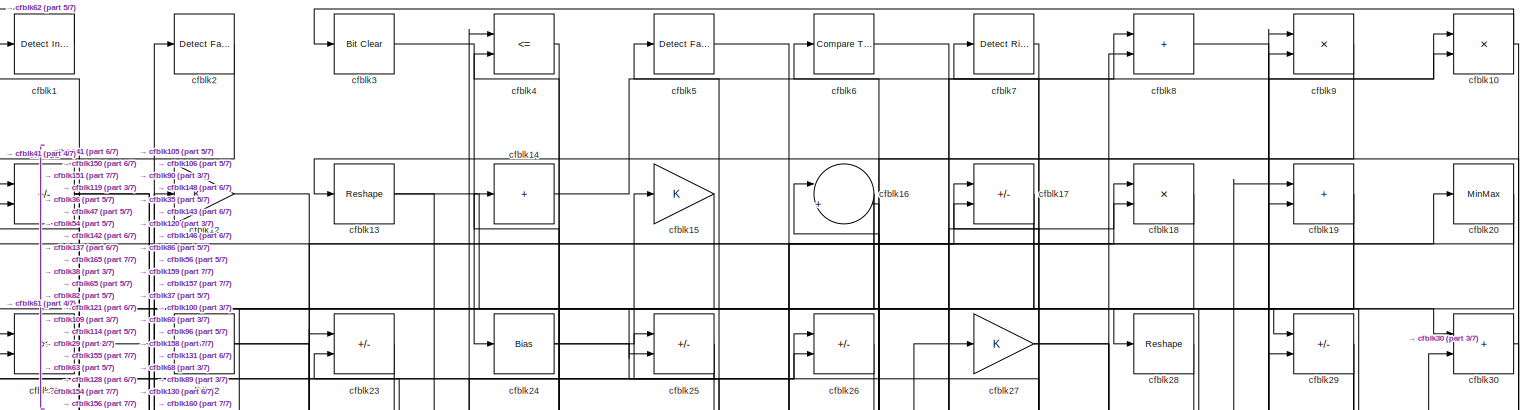
[diagram: root canvas - part 1/7, full width, top band]
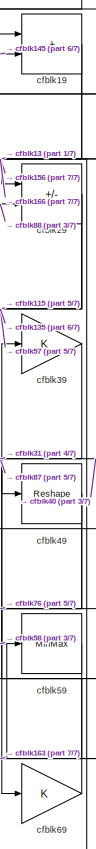
[diagram: root canvas - part 2/7, top right region]
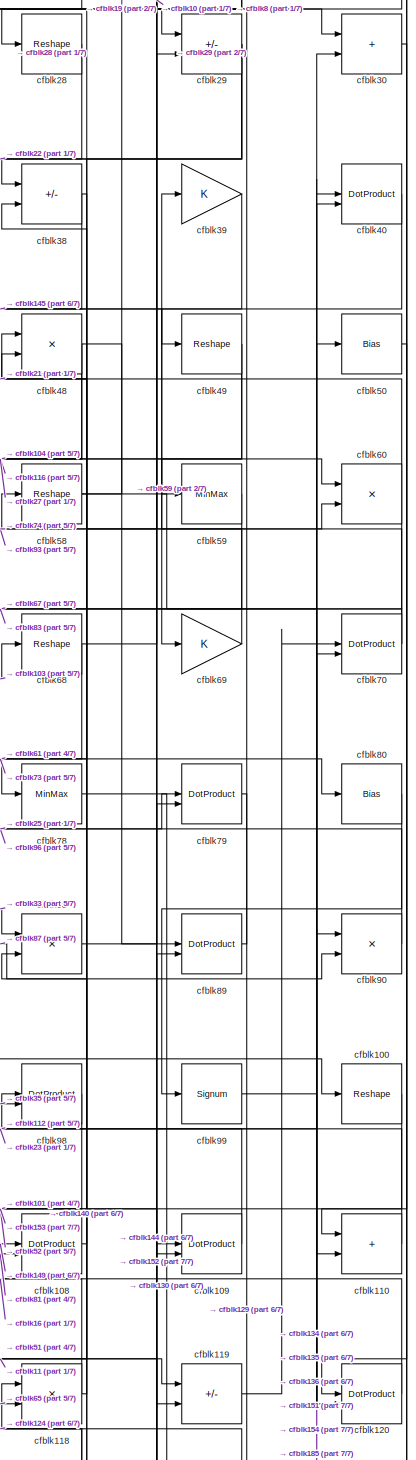
[diagram: root canvas - part 3/7, middle right region]
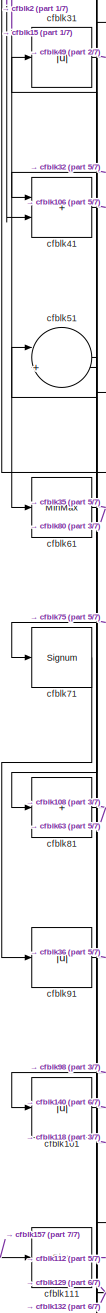
[diagram: root canvas - part 4/7, middle left region]
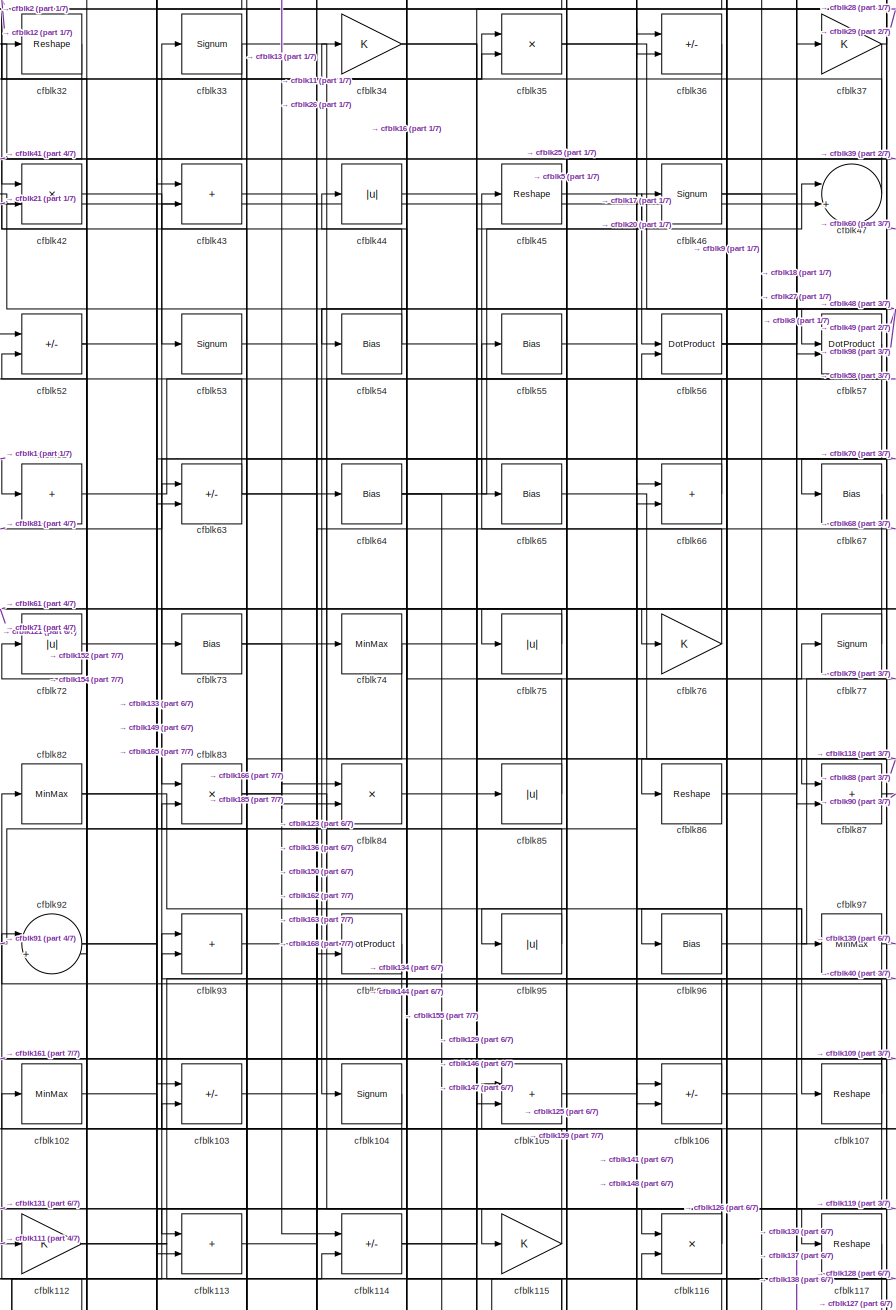
[diagram: root canvas - part 5/7, central region]
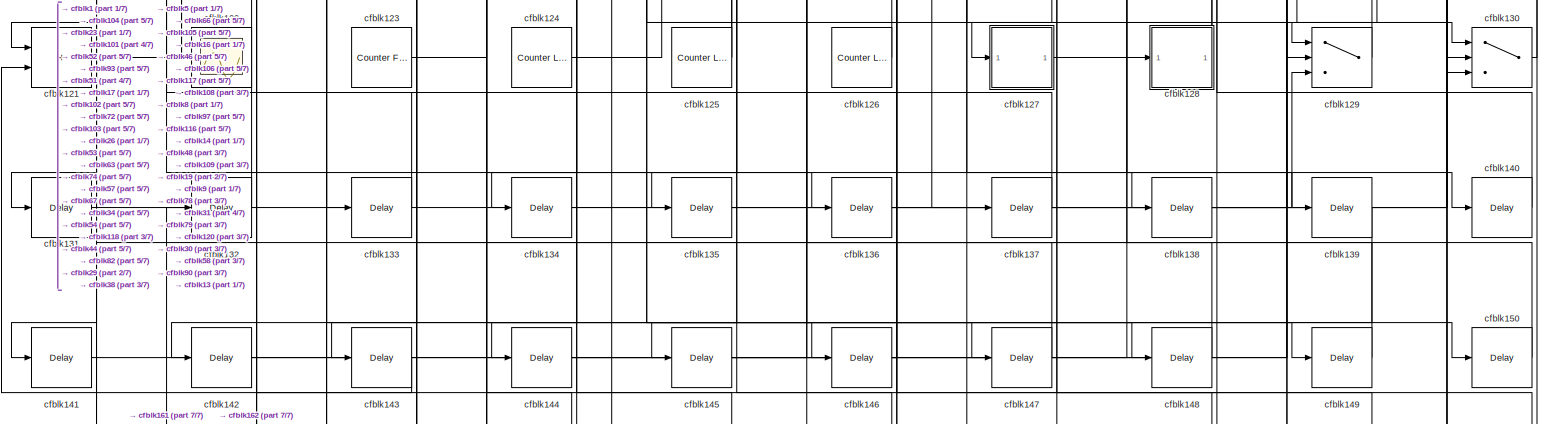
[diagram: root canvas - part 6/7, full width, bottom band]
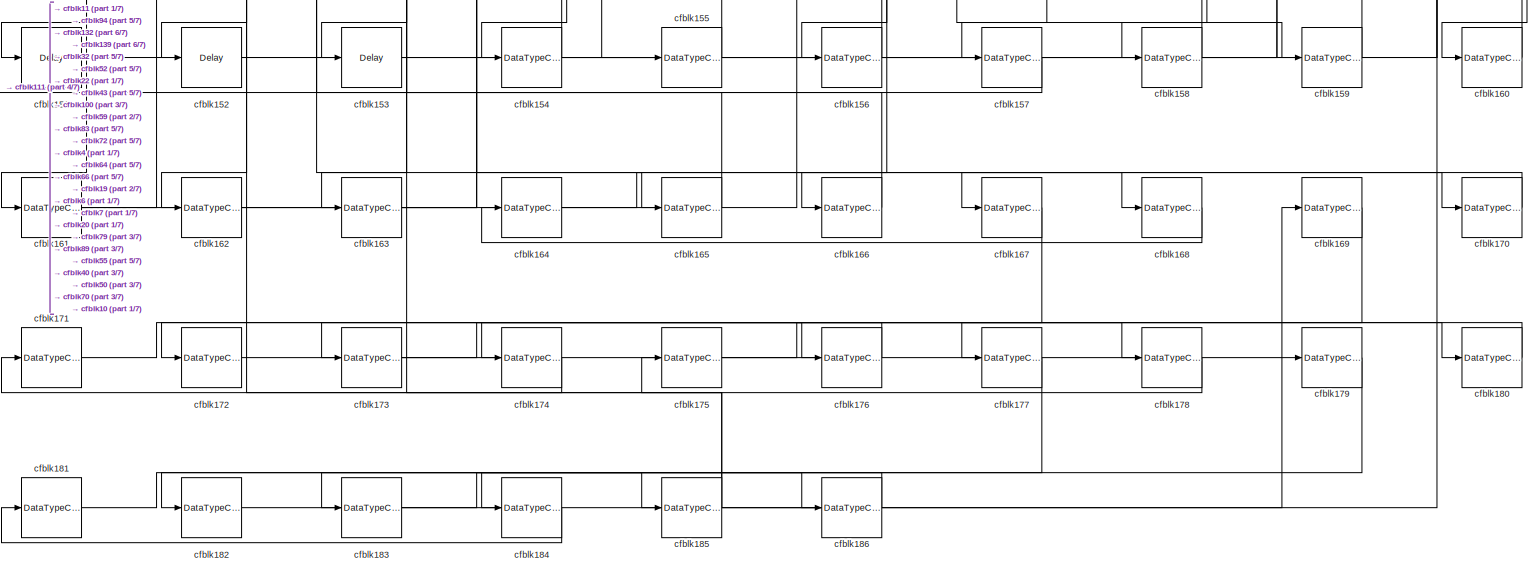
[diagram: root canvas - part 7/7, full width, bottom band]
MODEL slx_e5a774952ebf
KIND model
CONFIG AbsTol = auto
CONFIG EnableMultiTasking = off
CONFIG FixedStep = auto
CONFIG MaxStep = auto
CONFIG MinStep = auto
CONFIG RelTol = 1e-3
CONFIG SampleTimeConstraint = Unconstrained
CONFIG SolverName = VariableStepAuto
CONFIG StartTime = 0.0
CONFIG StopTime = 10.0
BLOCK [Reference] cfblk1  REF=simulink/Logic and Bit
Operations/Detect
Increase
  LibrarySourceBlock = hdlsllib/Logic and Bit\nOperations/Detect\nIncrease
  SourceBlock = simulink/Logic and Bit\nOperations/Detect\nIncrease
  SourceType = Detect Increase
BLOCK [Product] cfblk10
  Inputs = */
  RndMeth = Zero
  SaturateOnIntegerOverflow = on
BLOCK [Reshape] cfblk100
BLOCK [Abs] cfblk101
  SaturateOnIntegerOverflow = off
BLOCK [MinMax] cfblk102
BLOCK [Sum] cfblk103
  IconShape = rectangular
  Inputs = +-
BLOCK [Signum] cfblk104
BLOCK [Sum] cfblk105
  IconShape = rectangular
BLOCK [Sum] cfblk106
  IconShape = rectangular
  Inputs = +-
BLOCK [Reshape] cfblk107
BLOCK [DotProduct] cfblk108
  OutDataTypeStr = Inherit: Inherit via internal rule
BLOCK [DotProduct] cfblk109
  OutDataTypeStr = Inherit: Inherit via internal rule
BLOCK [Sum] cfblk11
  IconShape = rectangular
  Inputs = +-
BLOCK [Sum] cfblk110
  IconShape = rectangular
BLOCK [Bias] cfblk111
  Bias = 0.0
  SaturateOnIntegerOverflow = off
BLOCK [Gain] cfblk112
BLOCK [Sum] cfblk113
  IconShape = rectangular
BLOCK [Sum] cfblk114
  IconShape = rectangular
  Inputs = +-
BLOCK [Gain] cfblk115
BLOCK [Product] cfblk116
  Inputs = */
  RndMeth = Zero
  SaturateOnIntegerOverflow = on
BLOCK [Reshape] cfblk117
BLOCK [Product] cfblk118
  Inputs = */
  RndMeth = Zero
  SaturateOnIntegerOverflow = on
BLOCK [Sum] cfblk119
  IconShape = rectangular
  Inputs = +-
BLOCK [Gain] cfblk12
BLOCK [DotProduct] cfblk120
  OutDataTypeStr = Inherit: Inherit via internal rule
BLOCK [Sum] cfblk121
  IconShape = rectangular
BLOCK [Scope] cfblk122
  Floating = on
  NumInputPorts = 1
  ScopeSpecificationString = Simulink.scopes.TimeScopeBlockCfg('CurrentConfiguration', extmgr.ConfigurationSet(extmgr.Configuration('Core','General UI',true,'FigureColor',[0.156862745098039 0.156862745098039 0.156862745098039]),extmgr.Configuration('Core','Source UI',true),extmgr.Configuration('Sources','WiredSimulink',true,'DataLoggingVariableName','ScopeData1','DataLoggingSaveFormat','StructureWithTime','DataLoggingLimitDat...<+2713ch>
BLOCK [Reference] cfblk123  REF=hdlsllib/Sources/Counter
Free-Running
  SourceBlock = hdlsllib/Sources/Counter\nFree-Running
  SourceType = Counter Free-Running
BLOCK [Reference] cfblk124  REF=hdlsllib/Sources/Counter
Limited
  SourceBlock = hdlsllib/Sources/Counter\nLimited
  SourceType = Counter Limited
BLOCK [Reference] cfblk125  REF=hdlsllib/Sources/Counter
Limited
  SourceBlock = hdlsllib/Sources/Counter\nLimited
  SourceType = Counter Limited
BLOCK [Reference] cfblk126  REF=hdlsllib/Sources/Counter
Limited
  SourceBlock = hdlsllib/Sources/Counter\nLimited
  SourceType = Counter Limited
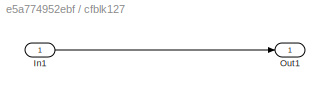
BLOCK [SubSystem] cfblk127
  LibrarySourceBlock = hdlsllib/Ports &\nSubsystems/Subsystem
BLOCK [Inport] cfblk127/In1
BLOCK [Outport] cfblk127/Out1
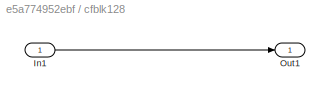
BLOCK [SubSystem] cfblk128
  LibrarySourceBlock = hdlsllib/Ports &\nSubsystems/Subsystem
BLOCK [Inport] cfblk128/In1
BLOCK [Outport] cfblk128/Out1
BLOCK [Switch] cfblk129
  InputSameDT = off
  SaturateOnIntegerOverflow = off
BLOCK [Reshape] cfblk13
BLOCK [Switch] cfblk130
  InputSameDT = off
  SaturateOnIntegerOverflow = off
BLOCK [Delay] cfblk131
  InputPortMap = u0
  SampleTime = 1
BLOCK [Delay] cfblk132
  InputPortMap = u0
  SampleTime = 1
BLOCK [Delay] cfblk133
  InputPortMap = u0
  SampleTime = 1
BLOCK [Delay] cfblk134
  InputPortMap = u0
  SampleTime = 1
BLOCK [Delay] cfblk135
  InputPortMap = u0
  SampleTime = 1
BLOCK [Delay] cfblk136
  InputPortMap = u0
  SampleTime = 1
BLOCK [Delay] cfblk137
  InputPortMap = u0
  SampleTime = 1
BLOCK [Delay] cfblk138
  InputPortMap = u0
  SampleTime = 1
BLOCK [Delay] cfblk139
  InputPortMap = u0
  SampleTime = 1
BLOCK [Sum] cfblk14
  IconShape = rectangular
  Inputs = +
BLOCK [Delay] cfblk140
  InputPortMap = u0
  SampleTime = 1
BLOCK [Delay] cfblk141
  InputPortMap = u0
  SampleTime = 1
BLOCK [Delay] cfblk142
  InputPortMap = u0
  SampleTime = 1
BLOCK [Delay] cfblk143
  InputPortMap = u0
  SampleTime = 1
BLOCK [Delay] cfblk144
  InputPortMap = u0
  SampleTime = 1
BLOCK [Delay] cfblk145
  InputPortMap = u0
  SampleTime = 1
BLOCK [Delay] cfblk146
  InputPortMap = u0
  SampleTime = 1
BLOCK [Delay] cfblk147
  InputPortMap = u0
  SampleTime = 1
BLOCK [Delay] cfblk148
  InputPortMap = u0
  SampleTime = 1
BLOCK [Delay] cfblk149
  InputPortMap = u0
  SampleTime = 1
BLOCK [Gain] cfblk15
BLOCK [Delay] cfblk150
  InputPortMap = u0
  SampleTime = 1
BLOCK [Delay] cfblk151
  InputPortMap = u0
  SampleTime = 1
BLOCK [Delay] cfblk152
  InputPortMap = u0
  SampleTime = 1
BLOCK [Delay] cfblk153
  InputPortMap = u0
  SampleTime = 1
BLOCK [DataTypeConversion] cfblk154
  RndMeth = Floor
  SaturateOnIntegerOverflow = off
BLOCK [DataTypeConversion] cfblk155
  OutDataTypeStr = uint8
  RndMeth = Floor
  SaturateOnIntegerOverflow = off
BLOCK [DataTypeConversion] cfblk156
  OutDataTypeStr = uint8
  RndMeth = Floor
  SaturateOnIntegerOverflow = off
BLOCK [DataTypeConversion] cfblk157
  OutDataTypeStr = uint8
  RndMeth = Floor
  SaturateOnIntegerOverflow = off
BLOCK [DataTypeConversion] cfblk158
  OutDataTypeStr = uint8
  RndMeth = Floor
  SaturateOnIntegerOverflow = off
BLOCK [DataTypeConversion] cfblk159
  OutDataTypeStr = uint8
  RndMeth = Floor
  SaturateOnIntegerOverflow = off
BLOCK [Sum] cfblk16
  Inputs = |++
BLOCK [DataTypeConversion] cfblk160
  OutDataTypeStr = uint8
  RndMeth = Floor
  SaturateOnIntegerOverflow = off
BLOCK [DataTypeConversion] cfblk161
  RndMeth = Floor
  SaturateOnIntegerOverflow = off
BLOCK [DataTypeConversion] cfblk162
  OutDataTypeStr = uint8
  RndMeth = Floor
  SaturateOnIntegerOverflow = off
BLOCK [DataTypeConversion] cfblk163
  OutDataTypeStr = uint8
  RndMeth = Floor
  SaturateOnIntegerOverflow = off
BLOCK [DataTypeConversion] cfblk164
  RndMeth = Floor
  SaturateOnIntegerOverflow = off
BLOCK [DataTypeConversion] cfblk165
  OutDataTypeStr = uint8
  RndMeth = Floor
  SaturateOnIntegerOverflow = off
BLOCK [DataTypeConversion] cfblk166
  OutDataTypeStr = uint8
  RndMeth = Floor
  SaturateOnIntegerOverflow = off
BLOCK [DataTypeConversion] cfblk167
  RndMeth = Floor
  SaturateOnIntegerOverflow = off
BLOCK [DataTypeConversion] cfblk168
  OutDataTypeStr = uint8
  RndMeth = Floor
  SaturateOnIntegerOverflow = off
BLOCK [DataTypeConversion] cfblk169
  RndMeth = Floor
  SaturateOnIntegerOverflow = off
BLOCK [Sum] cfblk17
  IconShape = rectangular
  Inputs = +-
BLOCK [DataTypeConversion] cfblk170
  OutDataTypeStr = uint8
  RndMeth = Floor
  SaturateOnIntegerOverflow = off
BLOCK [DataTypeConversion] cfblk171
  RndMeth = Floor
  SaturateOnIntegerOverflow = off
BLOCK [DataTypeConversion] cfblk172
  OutDataTypeStr = uint8
  RndMeth = Floor
  SaturateOnIntegerOverflow = off
BLOCK [DataTypeConversion] cfblk173
  RndMeth = Floor
  SaturateOnIntegerOverflow = off
BLOCK [DataTypeConversion] cfblk174
  OutDataTypeStr = uint8
  RndMeth = Floor
  SaturateOnIntegerOverflow = off
BLOCK [DataTypeConversion] cfblk175
  RndMeth = Floor
  SaturateOnIntegerOverflow = off
BLOCK [DataTypeConversion] cfblk176
  OutDataTypeStr = uint8
  RndMeth = Floor
  SaturateOnIntegerOverflow = off
BLOCK [DataTypeConversion] cfblk177
  RndMeth = Floor
  SaturateOnIntegerOverflow = off
BLOCK [DataTypeConversion] cfblk178
  OutDataTypeStr = uint8
  RndMeth = Floor
  SaturateOnIntegerOverflow = off
BLOCK [DataTypeConversion] cfblk179
  RndMeth = Floor
  SaturateOnIntegerOverflow = off
BLOCK [Product] cfblk18
  Inputs = */
  RndMeth = Zero
  SaturateOnIntegerOverflow = on
BLOCK [DataTypeConversion] cfblk180
  OutDataTypeStr = uint8
  RndMeth = Floor
  SaturateOnIntegerOverflow = off
BLOCK [DataTypeConversion] cfblk181
  RndMeth = Floor
  SaturateOnIntegerOverflow = off
BLOCK [DataTypeConversion] cfblk182
  OutDataTypeStr = uint8
  RndMeth = Floor
  SaturateOnIntegerOverflow = off
BLOCK [DataTypeConversion] cfblk183
  RndMeth = Floor
  SaturateOnIntegerOverflow = off
BLOCK [DataTypeConversion] cfblk184
  OutDataTypeStr = uint8
  RndMeth = Floor
  SaturateOnIntegerOverflow = off
BLOCK [DataTypeConversion] cfblk185
  RndMeth = Floor
  SaturateOnIntegerOverflow = off
BLOCK [DataTypeConversion] cfblk186
  OutDataTypeStr = uint8
  RndMeth = Floor
  SaturateOnIntegerOverflow = off
BLOCK [Sum] cfblk19
  IconShape = rectangular
BLOCK [Reference] cfblk2  REF=hdlsllib/Logic and Bit
Operations/Detect Fall
Nonpositive
  SourceBlock = hdlsllib/Logic and Bit\nOperations/Detect Fall\nNonpositive
  SourceType = Detect Fall Nonpositive
BLOCK [MinMax] cfblk20
BLOCK [Product] cfblk21
  Inputs = */
  RndMeth = Zero
  SaturateOnIntegerOverflow = on
BLOCK [Bias] cfblk22
  Bias = 0.0
  SaturateOnIntegerOverflow = off
BLOCK [Sum] cfblk23
  IconShape = rectangular
  Inputs = +-
BLOCK [Bias] cfblk24
  Bias = 0.0
  SaturateOnIntegerOverflow = off
BLOCK [Sum] cfblk25
  IconShape = rectangular
  Inputs = +-
BLOCK [Sum] cfblk26
  IconShape = rectangular
  Inputs = +-
BLOCK [Gain] cfblk27
BLOCK [Reshape] cfblk28
BLOCK [Sum] cfblk29
  IconShape = rectangular
  Inputs = +-
BLOCK [Reference] cfblk3  REF=simulink/Logic and Bit
Operations/Bit Clear
  LibrarySourceBlock = hdlsllib/Logic and Bit\nOperations/Bit Clear
  SourceBlock = simulink/Logic and Bit\nOperations/Bit Clear
  SourceType = Bit Clear
BLOCK [Sum] cfblk30
  IconShape = rectangular
BLOCK [Abs] cfblk31
  SaturateOnIntegerOverflow = off
BLOCK [Reshape] cfblk32
BLOCK [Signum] cfblk33
BLOCK [Gain] cfblk34
BLOCK [Product] cfblk35
  Inputs = */
  RndMeth = Zero
  SaturateOnIntegerOverflow = on
BLOCK [Sum] cfblk36
  IconShape = rectangular
  Inputs = +-
BLOCK [Gain] cfblk37
BLOCK [Sum] cfblk38
  IconShape = rectangular
  Inputs = +-
BLOCK [Gain] cfblk39
BLOCK [RelationalOperator] cfblk4
  InputSameDT = off
  Operator = <=
  OutDataTypeStr = boolean
BLOCK [DotProduct] cfblk40
  OutDataTypeStr = Inherit: Inherit via internal rule
BLOCK [Sum] cfblk41
  IconShape = rectangular
BLOCK [Product] cfblk42
  Inputs = */
  RndMeth = Zero
  SaturateOnIntegerOverflow = on
BLOCK [Sum] cfblk43
  IconShape = rectangular
BLOCK [Abs] cfblk44
  SaturateOnIntegerOverflow = off
BLOCK [Reshape] cfblk45
BLOCK [Signum] cfblk46
BLOCK [Sum] cfblk47
  Inputs = |++
BLOCK [Product] cfblk48
  Inputs = */
  RndMeth = Zero
  SaturateOnIntegerOverflow = on
BLOCK [Reshape] cfblk49
BLOCK [Reference] cfblk5  REF=hdlsllib/Logic and Bit
Operations/Detect Fall
Negative
  SourceBlock = hdlsllib/Logic and Bit\nOperations/Detect Fall\nNegative
  SourceType = Detect Fall Negative
BLOCK [Bias] cfblk50
  Bias = 0.0
  SaturateOnIntegerOverflow = off
BLOCK [Sum] cfblk51
  Inputs = |++
BLOCK [Sum] cfblk52
  IconShape = rectangular
  Inputs = +-
BLOCK [Signum] cfblk53
BLOCK [Bias] cfblk54
  Bias = 0.0
  SaturateOnIntegerOverflow = off
BLOCK [Bias] cfblk55
  Bias = 0.0
  SaturateOnIntegerOverflow = off
BLOCK [DotProduct] cfblk56
  OutDataTypeStr = Inherit: Inherit via internal rule
BLOCK [DotProduct] cfblk57
  OutDataTypeStr = Inherit: Inherit via internal rule
BLOCK [Reshape] cfblk58
BLOCK [MinMax] cfblk59
BLOCK [Reference] cfblk6  REF=hdlsllib/Logic and Bit
Operations/Compare
To Constant
  SourceBlock = hdlsllib/Logic and Bit\nOperations/Compare\nTo Constant
  SourceType = Compare To Constant
BLOCK [Product] cfblk60
  Inputs = */
  RndMeth = Zero
  SaturateOnIntegerOverflow = on
BLOCK [MinMax] cfblk61
BLOCK [Sum] cfblk62
  IconShape = rectangular
  Inputs = +
BLOCK [Sum] cfblk63
  IconShape = rectangular
  Inputs = +-
BLOCK [Bias] cfblk64
  Bias = 0.0
  SaturateOnIntegerOverflow = off
BLOCK [Bias] cfblk65
  Bias = 0.0
  SaturateOnIntegerOverflow = off
BLOCK [Sum] cfblk66
  IconShape = rectangular
BLOCK [Bias] cfblk67
  Bias = 0.0
  SaturateOnIntegerOverflow = off
BLOCK [Reshape] cfblk68
BLOCK [Gain] cfblk69
BLOCK [Reference] cfblk7  REF=hdlsllib/Logic and Bit
Operations/Detect Rise
Nonnegative
  SourceBlock = hdlsllib/Logic and Bit\nOperations/Detect Rise\nNonnegative
  SourceType = Detect Rise Nonnegative
BLOCK [DotProduct] cfblk70
  OutDataTypeStr = Inherit: Inherit via internal rule
BLOCK [Signum] cfblk71
BLOCK [Abs] cfblk72
  SaturateOnIntegerOverflow = off
BLOCK [Bias] cfblk73
  Bias = 0.0
  SaturateOnIntegerOverflow = off
BLOCK [MinMax] cfblk74
BLOCK [Abs] cfblk75
  SaturateOnIntegerOverflow = off
BLOCK [Gain] cfblk76
BLOCK [Signum] cfblk77
BLOCK [MinMax] cfblk78
BLOCK [DotProduct] cfblk79
  OutDataTypeStr = Inherit: Inherit via internal rule
BLOCK [Sum] cfblk8
  IconShape = rectangular
BLOCK [Bias] cfblk80
  Bias = 0.0
  SaturateOnIntegerOverflow = off
BLOCK [Sum] cfblk81
  IconShape = rectangular
  Inputs = +
BLOCK [MinMax] cfblk82
BLOCK [Product] cfblk83
  Inputs = */
  RndMeth = Zero
  SaturateOnIntegerOverflow = on
BLOCK [Product] cfblk84
  Inputs = */
  RndMeth = Zero
  SaturateOnIntegerOverflow = on
BLOCK [Abs] cfblk85
  SaturateOnIntegerOverflow = off
BLOCK [Reshape] cfblk86
BLOCK [Sum] cfblk87
  IconShape = rectangular
BLOCK [Product] cfblk88
  Inputs = */
  RndMeth = Zero
  SaturateOnIntegerOverflow = on
BLOCK [DotProduct] cfblk89
  OutDataTypeStr = Inherit: Inherit via internal rule
BLOCK [Product] cfblk9
  Inputs = */
  RndMeth = Zero
  SaturateOnIntegerOverflow = on
BLOCK [Product] cfblk90
  Inputs = */
  RndMeth = Zero
  SaturateOnIntegerOverflow = on
BLOCK [Abs] cfblk91
  SaturateOnIntegerOverflow = off
BLOCK [Sum] cfblk92
  Inputs = |++
BLOCK [Sum] cfblk93
  IconShape = rectangular
BLOCK [DotProduct] cfblk94
  OutDataTypeStr = Inherit: Inherit via internal rule
BLOCK [Abs] cfblk95
  SaturateOnIntegerOverflow = off
BLOCK [Bias] cfblk96
  Bias = 0.0
  SaturateOnIntegerOverflow = off
BLOCK [MinMax] cfblk97
BLOCK [DotProduct] cfblk98
  OutDataTypeStr = Inherit: Inherit via internal rule
BLOCK [Signum] cfblk99
LINE cfblk100:1 -> cfblk153:1
LINE cfblk101:1 -> cfblk140:1
LINE cfblk102:1 -> cfblk133:1
LINE cfblk103:1 -> cfblk68:1
LINE cfblk104:1 -> cfblk131:1
LINE cfblk105:1 -> cfblk20:1
NET cfblk106:1 -> cfblk130:3, cfblk5:1
NET cfblk107:1 -> cfblk113:2, cfblk92:1, cfblk93:1
LINE cfblk108:1 -> cfblk48:1
LINE cfblk109:1 -> cfblk23:2
NET cfblk10:1 -> cfblk160:1, cfblk3:1
LINE cfblk110:1 -> cfblk98:1
LINE cfblk111:1 -> cfblk112:1
NET cfblk112:1 -> cfblk114:2, cfblk40:1
LINE cfblk113:1 -> cfblk64:1
NET cfblk114:1 -> cfblk46:1, cfblk77:1
LINE cfblk115:1 -> cfblk102:1
NET cfblk116:1 -> cfblk33:1, cfblk42:2
LINE cfblk117:1 -> cfblk127:1
NET cfblk118:1 -> cfblk51:1, cfblk88:2
LINE cfblk119:1 -> cfblk70:1
NET cfblk11:1 -> cfblk119:1, cfblk151:1, cfblk36:2
LINE cfblk120:1 -> cfblk16:1
NET cfblk121:1 -> cfblk63:2, cfblk93:2
LINE cfblk123:1 -> cfblk74:1
LINE cfblk124:1 -> cfblk118:1
NET cfblk125:1 -> cfblk44:1, cfblk82:1
LINE cfblk126:1 -> cfblk105:1
LINE cfblk127/In1:1 -> cfblk127/Out1:1
LINE cfblk127:1 -> cfblk128:1
LINE cfblk128/In1:1 -> cfblk128/Out1:1
NET cfblk128:1 -> cfblk116:2, cfblk14:1
LINE cfblk129:1 -> cfblk31:1
LINE cfblk12:1 -> cfblk65:1
LINE cfblk130:1 -> cfblk13:1
LINE cfblk131:1 -> cfblk9:1
LINE cfblk132:1 -> cfblk51:2
LINE cfblk133:1 -> cfblk52:1
LINE cfblk134:1 -> cfblk120:2
LINE cfblk135:1 -> cfblk30:2
LINE cfblk136:1 -> cfblk90:1
LINE cfblk137:1 -> cfblk23:1
LINE cfblk138:1 -> cfblk129:3
LINE cfblk139:1 -> cfblk162:1
NET cfblk13:1 -> cfblk114:1, cfblk29:1
LINE cfblk140:1 -> cfblk48:2
LINE cfblk141:1 -> cfblk66:1
LINE cfblk142:1 -> cfblk8:2
LINE cfblk143:1 -> cfblk121:2
LINE cfblk144:1 -> cfblk109:1
LINE cfblk145:1 -> cfblk19:2
LINE cfblk146:1 -> cfblk16:2
LINE cfblk147:1 -> cfblk103:2
LINE cfblk148:1 -> cfblk106:1
LINE cfblk149:1 -> cfblk108:1
LINE cfblk14:1 -> cfblk10:1
LINE cfblk150:1 -> cfblk1:1
LINE cfblk151:1 -> cfblk40:2
LINE cfblk152:1 -> cfblk89:2
LINE cfblk153:1 -> cfblk79:2
NET cfblk154:1 -> cfblk70:2, cfblk72:1
LINE cfblk155:1 -> cfblk4:1
LINE cfblk156:1 -> cfblk4:2
LINE cfblk157:1 -> cfblk111:1
LINE cfblk158:1 -> cfblk7:1
LINE cfblk159:1 -> cfblk55:1
LINE cfblk15:1 -> cfblk61:1
LINE cfblk160:1 -> cfblk6:1
NET cfblk161:1 -> cfblk132:1, cfblk66:2
LINE cfblk162:1 -> cfblk94:1
LINE cfblk163:1 -> cfblk94:2
LINE cfblk164:1 -> cfblk170:1
LINE cfblk165:1 -> cfblk43:1
LINE cfblk166:1 -> cfblk43:2
LINE cfblk167:1 -> cfblk172:1
LINE cfblk168:1 -> cfblk164:1
LINE cfblk169:1 -> cfblk174:1
NET cfblk16:1 -> cfblk25:2, cfblk54:1
LINE cfblk170:1 -> cfblk167:1
LINE cfblk171:1 -> cfblk176:1
LINE cfblk172:1 -> cfblk169:1
LINE cfblk173:1 -> cfblk178:1
LINE cfblk174:1 -> cfblk171:1
LINE cfblk175:1 -> cfblk180:1
LINE cfblk176:1 -> cfblk173:1
LINE cfblk177:1 -> cfblk182:1
LINE cfblk178:1 -> cfblk175:1
LINE cfblk179:1 -> cfblk184:1
NET cfblk17:1 -> cfblk141:1, cfblk142:1
LINE cfblk180:1 -> cfblk177:1
LINE cfblk181:1 -> cfblk186:1
LINE cfblk182:1 -> cfblk179:1
LINE cfblk183:1 -> cfblk185:1
LINE cfblk184:1 -> cfblk181:1
NET cfblk185:1 -> cfblk32:1, cfblk50:1, cfblk83:2
LINE cfblk186:1 -> cfblk183:1
LINE cfblk18:1 -> cfblk22:1
NET cfblk19:1 -> cfblk156:1, cfblk166:1
LINE cfblk1:1 -> cfblk62:1
NET cfblk20:1 -> cfblk11:2, cfblk158:1
LINE cfblk21:1 -> cfblk47:2
NET cfblk22:1 -> cfblk165:1, cfblk38:1
LINE cfblk23:1 -> cfblk121:1
NET cfblk24:1 -> cfblk15:1, cfblk26:2
NET cfblk25:1 -> cfblk105:2, cfblk21:2
LINE cfblk26:1 -> cfblk143:1
NET cfblk27:1 -> cfblk100:1, cfblk60:1
LINE cfblk28:1 -> cfblk96:1
NET cfblk29:1 -> cfblk115:1, cfblk135:1, cfblk57:2
LINE cfblk2:1 -> cfblk41:2
LINE cfblk30:1 -> cfblk120:1
LINE cfblk31:1 -> cfblk49:1
LINE cfblk32:1 -> cfblk41:1
NET cfblk33:1 -> cfblk88:1, cfblk92:2
NET cfblk34:1 -> cfblk146:1, cfblk147:1
NET cfblk35:1 -> cfblk17:2, cfblk98:2
LINE cfblk36:1 -> cfblk42:1
NET cfblk37:1 -> cfblk17:1, cfblk95:1
NET cfblk38:1 -> cfblk145:1, cfblk78:1
LINE cfblk39:1 -> cfblk87:1
LINE cfblk3:1 -> cfblk24:1
LINE cfblk40:1 -> cfblk59:1
LINE cfblk41:1 -> cfblk106:2
LINE cfblk42:1 -> cfblk53:1
LINE cfblk43:1 -> cfblk168:1
LINE cfblk44:1 -> cfblk57:1
LINE cfblk45:1 -> cfblk56:1
NET cfblk46:1 -> cfblk137:1, cfblk138:1
LINE cfblk47:1 -> cfblk2:1
NET cfblk48:1 -> cfblk104:1, cfblk116:1, cfblk89:1
NET cfblk49:1 -> cfblk69:1, cfblk76:1
LINE cfblk4:1 -> cfblk154:1
LINE cfblk50:1 -> cfblk110:1
LINE cfblk51:1 -> cfblk81:1
NET cfblk52:1 -> cfblk109:2, cfblk152:1
LINE cfblk53:1 -> cfblk136:1
NET cfblk54:1 -> cfblk129:2, cfblk12:1
LINE cfblk55:1 -> cfblk97:1
NET cfblk56:1 -> cfblk18:1, cfblk27:1, cfblk37:1
LINE cfblk57:1 -> cfblk134:1
NET cfblk58:1 -> cfblk130:2, cfblk19:1
LINE cfblk59:1 -> cfblk163:1
LINE cfblk5:1 -> cfblk148:1
NET cfblk60:1 -> cfblk21:1, cfblk83:1
NET cfblk61:1 -> cfblk35:2, cfblk80:1
LINE cfblk62:1 -> cfblk9:2
NET cfblk63:1 -> cfblk11:1, cfblk150:1, cfblk26:1
NET cfblk64:1 -> cfblk155:1, cfblk47:1, cfblk87:2
LINE cfblk65:1 -> cfblk118:2
LINE cfblk66:1 -> cfblk56:2
LINE cfblk67:1 -> cfblk144:1
NET cfblk68:1 -> cfblk10:2, cfblk73:1
LINE cfblk69:1 -> cfblk39:1
LINE cfblk6:1 -> cfblk159:1
NET cfblk70:1 -> cfblk38:2, cfblk67:1
LINE cfblk71:1 -> cfblk91:1
LINE cfblk72:1 -> cfblk149:1
NET cfblk73:1 -> cfblk119:2, cfblk84:2
NET cfblk74:1 -> cfblk113:1, cfblk60:2
LINE cfblk75:1 -> cfblk71:1
LINE cfblk76:1 -> cfblk45:1
LINE cfblk77:1 -> cfblk75:1
LINE cfblk78:1 -> cfblk130:1
LINE cfblk79:1 -> cfblk129:1
LINE cfblk7:1 -> cfblk157:1
LINE cfblk80:1 -> cfblk99:1
NET cfblk81:1 -> cfblk108:2, cfblk63:1
NET cfblk82:1 -> cfblk107:1, cfblk18:2
NET cfblk83:1 -> cfblk117:1, cfblk84:1
LINE cfblk84:1 -> cfblk85:1
LINE cfblk85:1 -> cfblk34:1
LINE cfblk86:1 -> cfblk8:1
LINE cfblk87:1 -> cfblk90:2
LINE cfblk88:1 -> cfblk29:2
LINE cfblk89:1 -> cfblk28:1
LINE cfblk8:1 -> cfblk30:1
LINE cfblk90:1 -> cfblk25:1
LINE cfblk91:1 -> cfblk36:1
NET cfblk92:1 -> cfblk103:1, cfblk35:1
LINE cfblk93:1 -> cfblk58:1
LINE cfblk94:1 -> cfblk161:1
LINE cfblk95:1 -> cfblk52:2
LINE cfblk96:1 -> cfblk79:1
LINE cfblk97:1 -> cfblk139:1
LINE cfblk98:1 -> cfblk101:1
LINE cfblk99:1 -> cfblk110:2
LINE cfblk9:1 -> cfblk86:1
note: NET lines group one-source signal fan-out (src -> all destinations, sorted); 1:1 wires keep LINE
